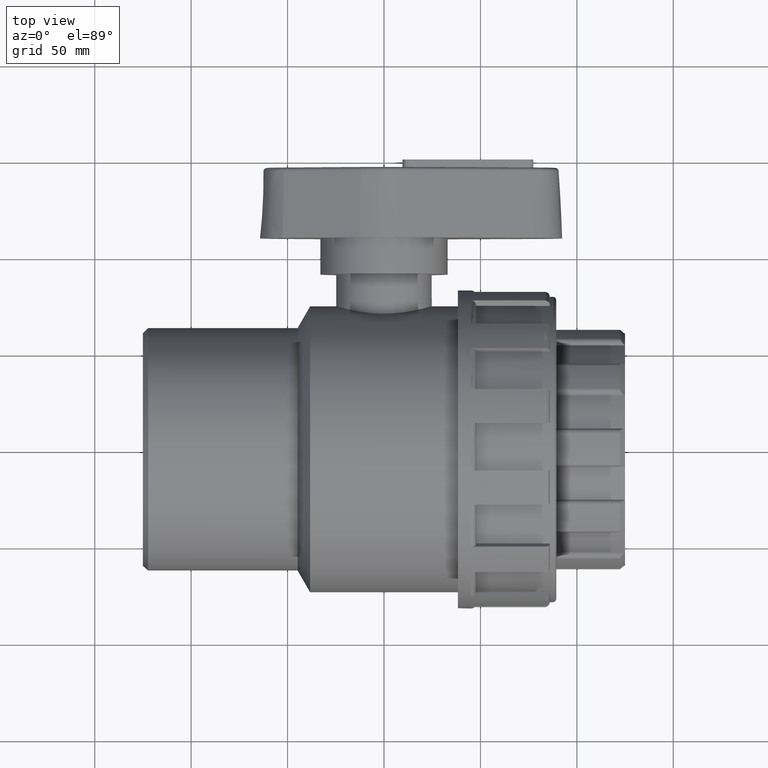
[diagram: clean part render]
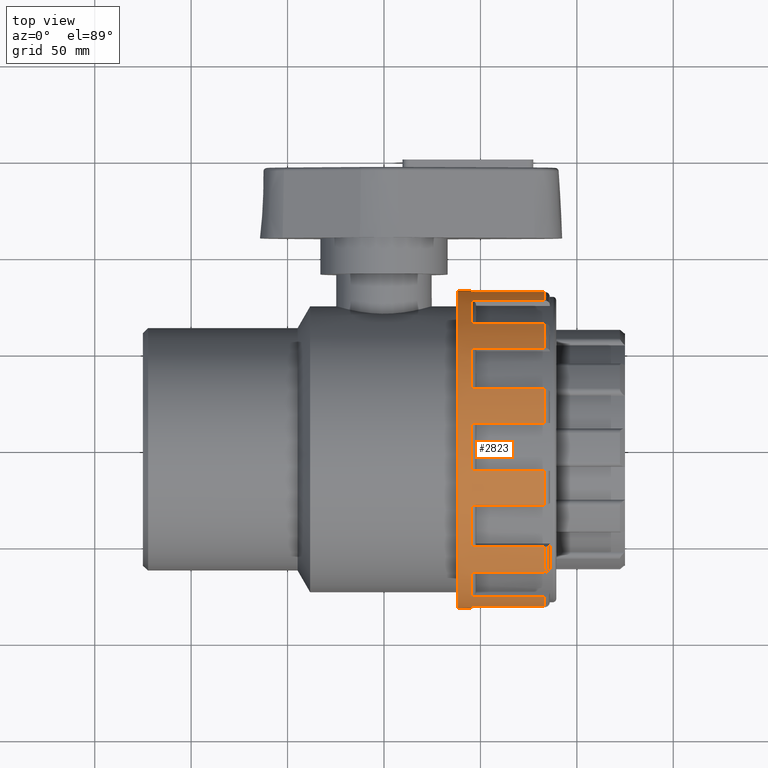
[diagram: same view with one face highlighted and labeled with its STEP entity id]
A machine part, top view. The second image highlights one B-rep face of the part: STEP entity #2823.
In plain terms, the highlighted cylindrical surface (bore or boss wall) has radius 82.5 mm, axis along (1, 0, 0).
Its self-contained STEP definition (entity closure, byte-faithful):
#26=FACE_BOUND('',#478,.T.);
#300=FACE_OUTER_BOUND('',#477,.T.);
#477=EDGE_LOOP('',(#2440,#2441,#2442,#2443,#2444,#2445,#2446,#2447,#2448,
#2449,#2450,#2451,#2452,#2453,#2454,#2455,#2456,#2457,#2458,#2459,#2460,
#2461,#2462,#2463,#2464,#2465,#2466,#2467,#2468,#2469,#2470,#2471,#2472,
#2473,#2474,#2475,#2476,#2477,#2478,#2479,#2480,#2481,#2482,#2483,#2484,
#2485,#2486,#2487));
#478=EDGE_LOOP('',(#2488));
#611=CIRCLE('',#3029,82.5);
#614=CIRCLE('',#3034,82.5);
#617=CIRCLE('',#3039,82.5);
#620=CIRCLE('',#3044,82.5);
#623=CIRCLE('',#3049,82.5);
#626=CIRCLE('',#3054,82.5);
#629=CIRCLE('',#3059,82.5);
#632=CIRCLE('',#3064,82.5);
#635=CIRCLE('',#3069,82.5);
#638=CIRCLE('',#3074,82.5);
#641=CIRCLE('',#3079,82.5);
#667=CIRCLE('',#3141,82.5);
#668=CIRCLE('',#3143,82.5);
#669=CIRCLE('',#3145,82.5);
#670=CIRCLE('',#3147,82.5);
#671=CIRCLE('',#3149,82.5);
#672=CIRCLE('',#3151,82.5);
#673=CIRCLE('',#3153,82.5);
#674=CIRCLE('',#3155,82.5);
#675=CIRCLE('',#3157,82.5);
#676=CIRCLE('',#3159,82.5);
#677=CIRCLE('',#3161,82.5);
#678=CIRCLE('',#3163,82.5);
#679=CIRCLE('',#3165,82.5);
#680=CIRCLE('',#3166,82.5);
#783=LINE('',#5123,#947);
#784=LINE('',#5137,#948);
#789=LINE('',#5157,#953);
#790=LINE('',#5171,#954);
#795=LINE('',#5191,#959);
#796=LINE('',#5205,#960);
#801=LINE('',#5225,#965);
#802=LINE('',#5239,#966);
#807=LINE('',#5259,#971);
#808=LINE('',#5273,#972);
#813=LINE('',#5293,#977);
#814=LINE('',#5307,#978);
#819=LINE('',#5327,#983);
#820=LINE('',#5341,#984);
#825=LINE('',#5361,#989);
#826=LINE('',#5375,#990);
#831=LINE('',#5395,#995);
#832=LINE('',#5409,#996);
#837=LINE('',#5429,#1001);
#838=LINE('',#5443,#1002);
#843=LINE('',#5463,#1007);
#844=LINE('',#5477,#1008);
#849=LINE('',#5571,#1013);
#850=LINE('',#5574,#1014);
#947=VECTOR('',#3770,38.25);
#948=VECTOR('',#3773,38.25);
#953=VECTOR('',#3780,38.25);
#954=VECTOR('',#3783,38.25);
#959=VECTOR('',#3790,38.25);
#960=VECTOR('',#3793,38.25);
#965=VECTOR('',#3800,38.25);
#966=VECTOR('',#3803,38.25);
#971=VECTOR('',#3810,38.25);
#972=VECTOR('',#3813,38.25);
#977=VECTOR('',#3820,38.25);
#978=VECTOR('',#3823,38.25);
#983=VECTOR('',#3830,38.25);
#984=VECTOR('',#3833,38.25);
#989=VECTOR('',#3840,38.25);
#990=VECTOR('',#3843,38.25);
#995=VECTOR('',#3850,38.25);
#996=VECTOR('',#3853,38.25);
#1001=VECTOR('',#3860,38.25);
#1002=VECTOR('',#3863,38.25);
#1007=VECTOR('',#3870,38.25);
#1008=VECTOR('',#3873,38.25);
#1013=VECTOR('',#4000,38.25);
#1014=VECTOR('',#4003,38.25);
#1211=VERTEX_POINT('',#4745);
#1214=VERTEX_POINT('',#4759);
#1217=VERTEX_POINT('',#4778);
#1220=VERTEX_POINT('',#4792);
#1223=VERTEX_POINT('',#4811);
#1226=VERTEX_POINT('',#4825);
#1229=VERTEX_POINT('',#4844);
#1232=VERTEX_POINT('',#4858);
#1235=VERTEX_POINT('',#4877);
#1238=VERTEX_POINT('',#4891);
#1241=VERTEX_POINT('',#4910);
#1244=VERTEX_POINT('',#4924);
#1247=VERTEX_POINT('',#4943);
#1250=VERTEX_POINT('',#4957);
#1253=VERTEX_POINT('',#4976);
#1256=VERTEX_POINT('',#4990);
#1259=VERTEX_POINT('',#5009);
#1262=VERTEX_POINT('',#5023);
#1265=VERTEX_POINT('',#5042);
#1268=VERTEX_POINT('',#5056);
#1271=VERTEX_POINT('',#5075);
#1274=VERTEX_POINT('',#5089);
#1278=VERTEX_POINT('',#5109);
#1280=VERTEX_POINT('',#5125);
#1284=VERTEX_POINT('',#5143);
#1286=VERTEX_POINT('',#5159);
#1290=VERTEX_POINT('',#5177);
#1292=VERTEX_POINT('',#5193);
#1296=VERTEX_POINT('',#5211);
#1298=VERTEX_POINT('',#5227);
#1302=VERTEX_POINT('',#5245);
#1304=VERTEX_POINT('',#5261);
#1308=VERTEX_POINT('',#5279);
#1310=VERTEX_POINT('',#5295);
#1314=VERTEX_POINT('',#5313);
#1316=VERTEX_POINT('',#5329);
#1320=VERTEX_POINT('',#5347);
#1322=VERTEX_POINT('',#5363);
#1326=VERTEX_POINT('',#5381);
#1328=VERTEX_POINT('',#5397);
#1332=VERTEX_POINT('',#5415);
#1334=VERTEX_POINT('',#5431);
#1338=VERTEX_POINT('',#5449);
#1340=VERTEX_POINT('',#5465);
#1347=VERTEX_POINT('',#5524);
#1348=VERTEX_POINT('',#5557);
#1349=VERTEX_POINT('',#5570);
#1350=VERTEX_POINT('',#5572);
#1351=VERTEX_POINT('',#5575);
#1560=EDGE_CURVE('',#1214,#1211,#611,.T.);
#1567=EDGE_CURVE('',#1220,#1217,#614,.T.);
#1574=EDGE_CURVE('',#1226,#1223,#617,.T.);
#1581=EDGE_CURVE('',#1232,#1229,#620,.T.);
#1588=EDGE_CURVE('',#1238,#1235,#623,.T.);
#1595=EDGE_CURVE('',#1244,#1241,#626,.T.);
#1602=EDGE_CURVE('',#1250,#1247,#629,.T.);
#1609=EDGE_CURVE('',#1256,#1253,#632,.T.);
#1616=EDGE_CURVE('',#1262,#1259,#635,.T.);
#1623=EDGE_CURVE('',#1268,#1265,#638,.T.);
#1630=EDGE_CURVE('',#1274,#1271,#641,.T.);
#1637=EDGE_CURVE('',#1278,#1211,#783,.T.);
#1639=EDGE_CURVE('',#1214,#1280,#784,.T.);
#1645=EDGE_CURVE('',#1284,#1217,#789,.T.);
#1647=EDGE_CURVE('',#1220,#1286,#790,.T.);
#1653=EDGE_CURVE('',#1290,#1223,#795,.T.);
#1655=EDGE_CURVE('',#1226,#1292,#796,.T.);
#1661=EDGE_CURVE('',#1296,#1229,#801,.T.);
#1663=EDGE_CURVE('',#1232,#1298,#802,.T.);
#1669=EDGE_CURVE('',#1302,#1235,#807,.T.);
#1671=EDGE_CURVE('',#1238,#1304,#808,.T.);
#1677=EDGE_CURVE('',#1308,#1241,#813,.T.);
#1679=EDGE_CURVE('',#1244,#1310,#814,.T.);
#1685=EDGE_CURVE('',#1314,#1247,#819,.T.);
#1687=EDGE_CURVE('',#1250,#1316,#820,.T.);
#1693=EDGE_CURVE('',#1320,#1253,#825,.T.);
#1695=EDGE_CURVE('',#1256,#1322,#826,.T.);
#1701=EDGE_CURVE('',#1326,#1259,#831,.T.);
#1703=EDGE_CURVE('',#1262,#1328,#832,.T.);
#1709=EDGE_CURVE('',#1332,#1265,#837,.T.);
#1711=EDGE_CURVE('',#1268,#1334,#838,.T.);
#1717=EDGE_CURVE('',#1338,#1271,#843,.T.);
#1719=EDGE_CURVE('',#1274,#1340,#844,.T.);
#1749=EDGE_CURVE('',#1347,#1340,#667,.T.);
#1750=EDGE_CURVE('',#1338,#1334,#668,.T.);
#1751=EDGE_CURVE('',#1332,#1328,#669,.T.);
#1752=EDGE_CURVE('',#1326,#1322,#670,.T.);
#1753=EDGE_CURVE('',#1320,#1316,#671,.T.);
#1754=EDGE_CURVE('',#1314,#1310,#672,.T.);
#1755=EDGE_CURVE('',#1308,#1304,#673,.T.);
#1756=EDGE_CURVE('',#1302,#1298,#674,.T.);
#1757=EDGE_CURVE('',#1296,#1292,#675,.T.);
#1758=EDGE_CURVE('',#1290,#1286,#676,.T.);
#1759=EDGE_CURVE('',#1284,#1280,#677,.T.);
#1760=EDGE_CURVE('',#1278,#1348,#678,.T.);
#1762=EDGE_CURVE('',#1347,#1349,#849,.T.);
#1763=EDGE_CURVE('',#1350,#1349,#679,.T.);
#1764=EDGE_CURVE('',#1350,#1348,#850,.T.);
#1765=EDGE_CURVE('',#1351,#1351,#680,.T.);
#2440=ORIENTED_EDGE('',*,*,#1639,.T.);
#2441=ORIENTED_EDGE('',*,*,#1759,.F.);
#2442=ORIENTED_EDGE('',*,*,#1645,.T.);
#2443=ORIENTED_EDGE('',*,*,#1567,.F.);
#2444=ORIENTED_EDGE('',*,*,#1647,.T.);
#2445=ORIENTED_EDGE('',*,*,#1758,.F.);
#2446=ORIENTED_EDGE('',*,*,#1653,.T.);
#2447=ORIENTED_EDGE('',*,*,#1574,.F.);
#2448=ORIENTED_EDGE('',*,*,#1655,.T.);
#2449=ORIENTED_EDGE('',*,*,#1757,.F.);
#2450=ORIENTED_EDGE('',*,*,#1661,.T.);
#2451=ORIENTED_EDGE('',*,*,#1581,.F.);
#2452=ORIENTED_EDGE('',*,*,#1663,.T.);
#2453=ORIENTED_EDGE('',*,*,#1756,.F.);
#2454=ORIENTED_EDGE('',*,*,#1669,.T.);
#2455=ORIENTED_EDGE('',*,*,#1588,.F.);
#2456=ORIENTED_EDGE('',*,*,#1671,.T.);
#2457=ORIENTED_EDGE('',*,*,#1755,.F.);
#2458=ORIENTED_EDGE('',*,*,#1677,.T.);
#2459=ORIENTED_EDGE('',*,*,#1595,.F.);
#2460=ORIENTED_EDGE('',*,*,#1679,.T.);
#2461=ORIENTED_EDGE('',*,*,#1754,.F.);
#2462=ORIENTED_EDGE('',*,*,#1685,.T.);
#2463=ORIENTED_EDGE('',*,*,#1602,.F.);
#2464=ORIENTED_EDGE('',*,*,#1687,.T.);
#2465=ORIENTED_EDGE('',*,*,#1753,.F.);
#2466=ORIENTED_EDGE('',*,*,#1693,.T.);
#2467=ORIENTED_EDGE('',*,*,#1609,.F.);
#2468=ORIENTED_EDGE('',*,*,#1695,.T.);
#2469=ORIENTED_EDGE('',*,*,#1752,.F.);
#2470=ORIENTED_EDGE('',*,*,#1701,.T.);
#2471=ORIENTED_EDGE('',*,*,#1616,.F.);
#2472=ORIENTED_EDGE('',*,*,#1703,.T.);
#2473=ORIENTED_EDGE('',*,*,#1751,.F.);
#2474=ORIENTED_EDGE('',*,*,#1709,.T.);
#2475=ORIENTED_EDGE('',*,*,#1623,.F.);
#2476=ORIENTED_EDGE('',*,*,#1711,.T.);
#2477=ORIENTED_EDGE('',*,*,#1750,.F.);
#2478=ORIENTED_EDGE('',*,*,#1717,.T.);
#2479=ORIENTED_EDGE('',*,*,#1630,.F.);
#2480=ORIENTED_EDGE('',*,*,#1719,.T.);
#2481=ORIENTED_EDGE('',*,*,#1749,.F.);
#2482=ORIENTED_EDGE('',*,*,#1762,.T.);
#2483=ORIENTED_EDGE('',*,*,#1763,.F.);
#2484=ORIENTED_EDGE('',*,*,#1764,.T.);
#2485=ORIENTED_EDGE('',*,*,#1760,.F.);
#2486=ORIENTED_EDGE('',*,*,#1637,.T.);
#2487=ORIENTED_EDGE('',*,*,#1560,.F.);
#2488=ORIENTED_EDGE('',*,*,#1765,.T.);
#2668=CYLINDRICAL_SURFACE('',#3164,82.5);
#2823=ADVANCED_FACE('',(#300,#26),#2668,.T.);
#3029=AXIS2_PLACEMENT_3D('',#4770,#3638,#3639);
#3034=AXIS2_PLACEMENT_3D('',#4803,#3650,#3651);
#3039=AXIS2_PLACEMENT_3D('',#4836,#3662,#3663);
#3044=AXIS2_PLACEMENT_3D('',#4869,#3674,#3675);
#3049=AXIS2_PLACEMENT_3D('',#4902,#3686,#3687);
#3054=AXIS2_PLACEMENT_3D('',#4935,#3698,#3699);
#3059=AXIS2_PLACEMENT_3D('',#4968,#3710,#3711);
#3064=AXIS2_PLACEMENT_3D('',#5001,#3722,#3723);
#3069=AXIS2_PLACEMENT_3D('',#5034,#3734,#3735);
#3074=AXIS2_PLACEMENT_3D('',#5067,#3746,#3747);
#3079=AXIS2_PLACEMENT_3D('',#5100,#3758,#3759);
#3141=AXIS2_PLACEMENT_3D('',#5535,#3952,#3953);
#3143=AXIS2_PLACEMENT_3D('',#5537,#3956,#3957);
#3145=AXIS2_PLACEMENT_3D('',#5539,#3960,#3961);
#3147=AXIS2_PLACEMENT_3D('',#5541,#3964,#3965);
#3149=AXIS2_PLACEMENT_3D('',#5543,#3968,#3969);
#3151=AXIS2_PLACEMENT_3D('',#5545,#3972,#3973);
#3153=AXIS2_PLACEMENT_3D('',#5547,#3976,#3977);
#3155=AXIS2_PLACEMENT_3D('',#5549,#3980,#3981);
#3157=AXIS2_PLACEMENT_3D('',#5551,#3984,#3985);
#3159=AXIS2_PLACEMENT_3D('',#5553,#3988,#3989);
#3161=AXIS2_PLACEMENT_3D('',#5555,#3992,#3993);
#3163=AXIS2_PLACEMENT_3D('',#5558,#3996,#3997);
#3164=AXIS2_PLACEMENT_3D('',#5569,#3998,#3999);
#3165=AXIS2_PLACEMENT_3D('',#5573,#4001,#4002);
#3166=AXIS2_PLACEMENT_3D('',#5576,#4004,#4005);
#3638=DIRECTION('center_axis',(1.,0.,0.));
#3639=DIRECTION('ref_axis',(0.,-0.866025403784438,0.5));
#3650=DIRECTION('center_axis',(1.,0.,0.));
#3651=DIRECTION('ref_axis',(0.,-0.499999999999999,0.866025403784439));
#3662=DIRECTION('center_axis',(1.,0.,0.));
#3663=DIRECTION('ref_axis',(0.,6.12323399573677E-17,1.));
#3674=DIRECTION('center_axis',(1.,0.,0.));
#3675=DIRECTION('ref_axis',(0.,0.500000000000001,0.866025403784438));
#3686=DIRECTION('center_axis',(1.,0.,0.));
#3687=DIRECTION('ref_axis',(0.,0.866025403784439,0.5));
#3698=DIRECTION('center_axis',(1.,0.,0.));
#3699=DIRECTION('ref_axis',(0.,1.,-8.32667268468867E-17));
#3710=DIRECTION('center_axis',(1.,0.,0.));
#3711=DIRECTION('ref_axis',(0.,0.866025403784438,-0.5));
#3722=DIRECTION('center_axis',(1.,0.,0.));
#3723=DIRECTION('ref_axis',(0.,0.5,-0.866025403784439));
#3734=DIRECTION('center_axis',(1.,0.,0.));
#3735=DIRECTION('ref_axis',(0.,6.12323399573677E-17,-1.));
#3746=DIRECTION('center_axis',(1.,0.,0.));
#3747=DIRECTION('ref_axis',(0.,-0.5,-0.866025403784438));
#3758=DIRECTION('center_axis',(1.,0.,0.));
#3759=DIRECTION('ref_axis',(0.,-0.866025403784439,-0.5));
#3770=DIRECTION('',(-1.,0.,0.));
#3773=DIRECTION('',(1.,0.,0.));
#3780=DIRECTION('',(-1.,0.,0.));
#3783=DIRECTION('',(1.,0.,0.));
#3790=DIRECTION('',(-1.,0.,0.));
#3793=DIRECTION('',(1.,0.,0.));
#3800=DIRECTION('',(-1.,0.,0.));
#3803=DIRECTION('',(1.,0.,0.));
#3810=DIRECTION('',(-1.,0.,0.));
#3813=DIRECTION('',(1.,0.,0.));
#3820=DIRECTION('',(-1.,0.,0.));
#3823=DIRECTION('',(1.,0.,0.));
#3830=DIRECTION('',(-1.,0.,0.));
#3833=DIRECTION('',(1.,0.,0.));
#3840=DIRECTION('',(-1.,0.,0.));
#3843=DIRECTION('',(1.,0.,0.));
#3850=DIRECTION('',(-1.,0.,0.));
#3853=DIRECTION('',(1.,0.,0.));
#3860=DIRECTION('',(-1.,0.,0.));
#3863=DIRECTION('',(1.,0.,0.));
#3870=DIRECTION('',(-1.,0.,0.));
#3873=DIRECTION('',(1.,0.,0.));
#3952=DIRECTION('center_axis',(1.,0.,0.));
#3953=DIRECTION('ref_axis',(0.,-1.,1.83697019872103E-16));
#3956=DIRECTION('center_axis',(1.,0.,0.));
#3957=DIRECTION('ref_axis',(0.,-1.,1.83697019872103E-16));
#3960=DIRECTION('center_axis',(1.,0.,0.));
#3961=DIRECTION('ref_axis',(0.,-1.,1.83697019872103E-16));
#3964=DIRECTION('center_axis',(1.,0.,0.));
#3965=DIRECTION('ref_axis',(0.,-1.,1.83697019872103E-16));
#3968=DIRECTION('center_axis',(1.,0.,0.));
#3969=DIRECTION('ref_axis',(0.,-1.,1.83697019872103E-16));
#3972=DIRECTION('center_axis',(1.,0.,0.));
#3973=DIRECTION('ref_axis',(0.,-1.,1.83697019872103E-16));
#3976=DIRECTION('center_axis',(1.,0.,0.));
#3977=DIRECTION('ref_axis',(0.,-1.,1.83697019872103E-16));
#3980=DIRECTION('center_axis',(1.,0.,0.));
#3981=DIRECTION('ref_axis',(0.,-1.,1.83697019872103E-16));
#3984=DIRECTION('center_axis',(1.,0.,0.));
#3985=DIRECTION('ref_axis',(0.,-1.,1.83697019872103E-16));
#3988=DIRECTION('center_axis',(1.,0.,0.));
#3989=DIRECTION('ref_axis',(0.,-1.,1.83697019872103E-16));
#3992=DIRECTION('center_axis',(1.,0.,0.));
#3993=DIRECTION('ref_axis',(0.,-1.,1.83697019872103E-16));
#3996=DIRECTION('center_axis',(1.,0.,0.));
#3997=DIRECTION('ref_axis',(0.,-1.,1.83697019872103E-16));
#3998=DIRECTION('center_axis',(1.,0.,0.));
#3999=DIRECTION('ref_axis',(0.,1.,0.));
#4000=DIRECTION('',(-1.,0.,0.));
#4001=DIRECTION('center_axis',(1.,0.,0.));
#4002=DIRECTION('ref_axis',(0.,-1.,-1.22464679914735E-16));
#4003=DIRECTION('',(1.,0.,0.));
#4004=DIRECTION('center_axis',(1.,0.,0.));
#4005=DIRECTION('ref_axis',(0.,0.,-1.));
#4745=CARTESIAN_POINT('',(45.05,-76.8262431318678,30.0662329905683));
#4759=CARTESIAN_POINT('',(45.05,-64.4512431318678,51.5003617342332));
#4770=CARTESIAN_POINT('Origin',(45.05,0.,0.));
#4778=CARTESIAN_POINT('',(45.05,-51.5003617342331,64.4512431318678));
#4792=CARTESIAN_POINT('',(45.05,-30.0662329905682,76.8262431318678));
#4803=CARTESIAN_POINT('Origin',(45.05,0.,0.));
#4811=CARTESIAN_POINT('',(45.05,-12.375,81.5665947248014));
#4825=CARTESIAN_POINT('',(45.05,12.375,81.5665947248014));
#4836=CARTESIAN_POINT('Origin',(45.05,0.,0.));
#4844=CARTESIAN_POINT('',(45.05,30.0662329905683,76.8262431318678));
#4858=CARTESIAN_POINT('',(45.05,51.5003617342332,64.4512431318678));
#4869=CARTESIAN_POINT('Origin',(45.05,0.,0.));
#4877=CARTESIAN_POINT('',(45.05,64.4512431318678,51.5003617342331));
#4891=CARTESIAN_POINT('',(45.05,76.8262431318678,30.0662329905683));
#4902=CARTESIAN_POINT('Origin',(45.05,0.,0.));
#4910=CARTESIAN_POINT('',(45.05,81.5665947248014,12.375));
#4924=CARTESIAN_POINT('',(45.05,81.5665947248014,-12.375));
#4935=CARTESIAN_POINT('Origin',(45.05,0.,0.));
#4943=CARTESIAN_POINT('',(45.05,76.8262431318678,-30.0662329905683));
#4957=CARTESIAN_POINT('',(45.05,64.4512431318678,-51.5003617342332));
#4968=CARTESIAN_POINT('Origin',(45.05,0.,0.));
#4976=CARTESIAN_POINT('',(45.05,51.5003617342331,-64.4512431318678));
#4990=CARTESIAN_POINT('',(45.05,30.0662329905682,-76.8262431318678));
#5001=CARTESIAN_POINT('Origin',(45.05,0.,0.));
#5009=CARTESIAN_POINT('',(45.05,12.375,-81.5665947248014));
#5023=CARTESIAN_POINT('',(45.05,-12.375,-81.5665947248014));
#5034=CARTESIAN_POINT('Origin',(45.05,0.,0.));
#5042=CARTESIAN_POINT('',(45.05,-30.0662329905683,-76.8262431318678));
#5056=CARTESIAN_POINT('',(45.05,-51.5003617342332,-64.4512431318678));
#5067=CARTESIAN_POINT('Origin',(45.05,0.,0.));
#5075=CARTESIAN_POINT('',(45.05,-64.4512431318678,-51.5003617342331));
#5089=CARTESIAN_POINT('',(45.05,-76.8262431318678,-30.0662329905682));
#5100=CARTESIAN_POINT('Origin',(45.05,0.,0.));
#5109=CARTESIAN_POINT('',(83.3,-76.8262431318678,30.0662329905683));
#5123=CARTESIAN_POINT('',(62.15,-76.8262431318678,30.0662329905683));
#5125=CARTESIAN_POINT('',(83.3,-64.4512431318678,51.5003617342332));
#5137=CARTESIAN_POINT('',(62.15,-64.4512431318678,51.5003617342332));
#5143=CARTESIAN_POINT('',(83.3,-51.5003617342331,64.4512431318678));
#5157=CARTESIAN_POINT('',(62.15,-51.5003617342331,64.4512431318678));
#5159=CARTESIAN_POINT('',(83.3,-30.0662329905682,76.8262431318678));
#5171=CARTESIAN_POINT('',(62.15,-30.0662329905682,76.8262431318678));
#5177=CARTESIAN_POINT('',(83.3,-12.375,81.5665947248014));
#5191=CARTESIAN_POINT('',(62.15,-12.375,81.5665947248014));
#5193=CARTESIAN_POINT('',(83.3,12.375,81.5665947248014));
#5205=CARTESIAN_POINT('',(62.15,12.375,81.5665947248014));
#5211=CARTESIAN_POINT('',(83.3,30.0662329905683,76.8262431318678));
#5225=CARTESIAN_POINT('',(62.15,30.0662329905683,76.8262431318678));
#5227=CARTESIAN_POINT('',(83.3,51.5003617342332,64.4512431318678));
#5239=CARTESIAN_POINT('',(62.15,51.5003617342332,64.4512431318678));
#5245=CARTESIAN_POINT('',(83.3,64.4512431318678,51.5003617342331));
#5259=CARTESIAN_POINT('',(62.15,64.4512431318678,51.5003617342331));
#5261=CARTESIAN_POINT('',(83.3,76.8262431318678,30.0662329905682));
#5273=CARTESIAN_POINT('',(62.15,76.8262431318678,30.0662329905682));
#5279=CARTESIAN_POINT('',(83.3,81.5665947248014,12.375));
#5293=CARTESIAN_POINT('',(62.15,81.5665947248014,12.375));
#5295=CARTESIAN_POINT('',(83.3,81.5665947248014,-12.375));
#5307=CARTESIAN_POINT('',(62.15,81.5665947248014,-12.375));
#5313=CARTESIAN_POINT('',(83.3,76.8262431318678,-30.0662329905683));
#5327=CARTESIAN_POINT('',(62.15,76.8262431318678,-30.0662329905683));
#5329=CARTESIAN_POINT('',(83.3,64.4512431318678,-51.5003617342332));
#5341=CARTESIAN_POINT('',(62.15,64.4512431318678,-51.5003617342332));
#5347=CARTESIAN_POINT('',(83.3,51.5003617342331,-64.4512431318678));
#5361=CARTESIAN_POINT('',(62.15,51.5003617342331,-64.4512431318678));
#5363=CARTESIAN_POINT('',(83.3,30.0662329905682,-76.8262431318678));
#5375=CARTESIAN_POINT('',(62.15,30.0662329905682,-76.8262431318678));
#5381=CARTESIAN_POINT('',(83.3,12.375,-81.5665947248014));
#5395=CARTESIAN_POINT('',(62.15,12.375,-81.5665947248014));
#5397=CARTESIAN_POINT('',(83.3,-12.375,-81.5665947248014));
#5409=CARTESIAN_POINT('',(62.15,-12.375,-81.5665947248014));
#5415=CARTESIAN_POINT('',(83.3,-30.0662329905683,-76.8262431318678));
#5429=CARTESIAN_POINT('',(62.15,-30.0662329905683,-76.8262431318678));
#5431=CARTESIAN_POINT('',(83.3,-51.5003617342331,-64.4512431318678));
#5443=CARTESIAN_POINT('',(62.15,-51.5003617342331,-64.4512431318678));
#5449=CARTESIAN_POINT('',(83.3,-64.4512431318678,-51.5003617342331));
#5463=CARTESIAN_POINT('',(62.15,-64.4512431318678,-51.5003617342331));
#5465=CARTESIAN_POINT('',(83.3,-76.8262431318678,-30.0662329905683));
#5477=CARTESIAN_POINT('',(62.15,-76.8262431318678,-30.0662329905683));
#5524=CARTESIAN_POINT('',(83.3,-81.5665947248014,-12.375));
#5535=CARTESIAN_POINT('Origin',(83.3,0.,0.));
#5537=CARTESIAN_POINT('Origin',(83.3,0.,0.));
#5539=CARTESIAN_POINT('Origin',(83.3,0.,0.));
#5541=CARTESIAN_POINT('Origin',(83.3,0.,0.));
#5543=CARTESIAN_POINT('Origin',(83.3,0.,0.));
#5545=CARTESIAN_POINT('Origin',(83.3,0.,0.));
#5547=CARTESIAN_POINT('Origin',(83.3,0.,0.));
#5549=CARTESIAN_POINT('Origin',(83.3,0.,0.));
#5551=CARTESIAN_POINT('Origin',(83.3,0.,0.));
#5553=CARTESIAN_POINT('Origin',(83.3,0.,0.));
#5555=CARTESIAN_POINT('Origin',(83.3,0.,0.));
#5557=CARTESIAN_POINT('',(83.3,-81.5665947248014,12.375));
#5558=CARTESIAN_POINT('Origin',(83.3,0.,0.));
#5569=CARTESIAN_POINT('Origin',(62.15,0.,0.));
#5570=CARTESIAN_POINT('',(45.05,-81.5665947248014,-12.375));
#5571=CARTESIAN_POINT('',(62.15,-81.5665947248014,-12.375));
#5572=CARTESIAN_POINT('',(45.05,-81.5665947248014,12.375));
#5573=CARTESIAN_POINT('Origin',(45.05,0.,0.));
#5574=CARTESIAN_POINT('',(62.15,-81.5665947248014,12.375));
#5575=CARTESIAN_POINT('',(38.3,82.5,0.));
#5576=CARTESIAN_POINT('Origin',(38.3,0.,0.));